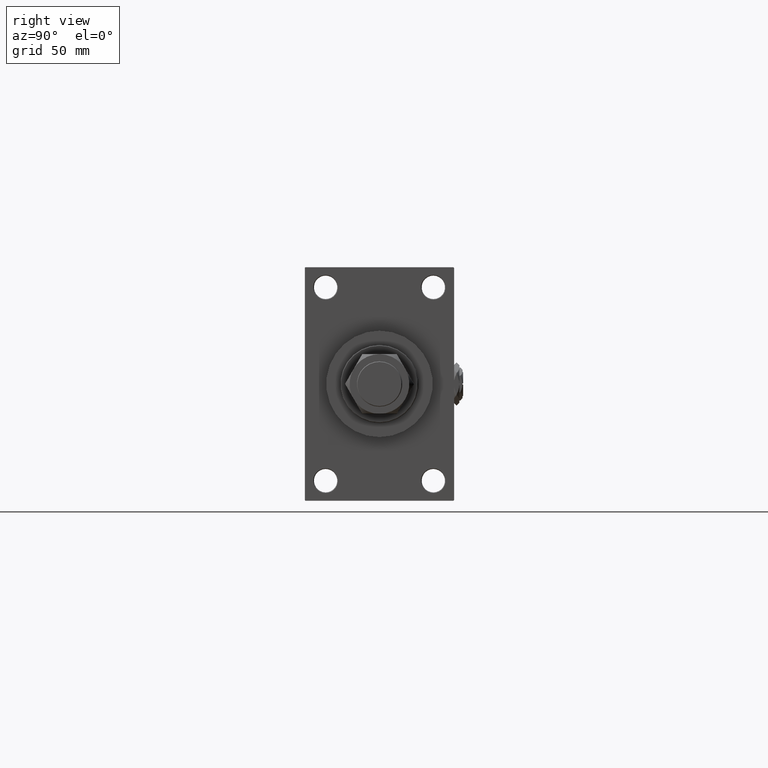
[diagram: clean part render]
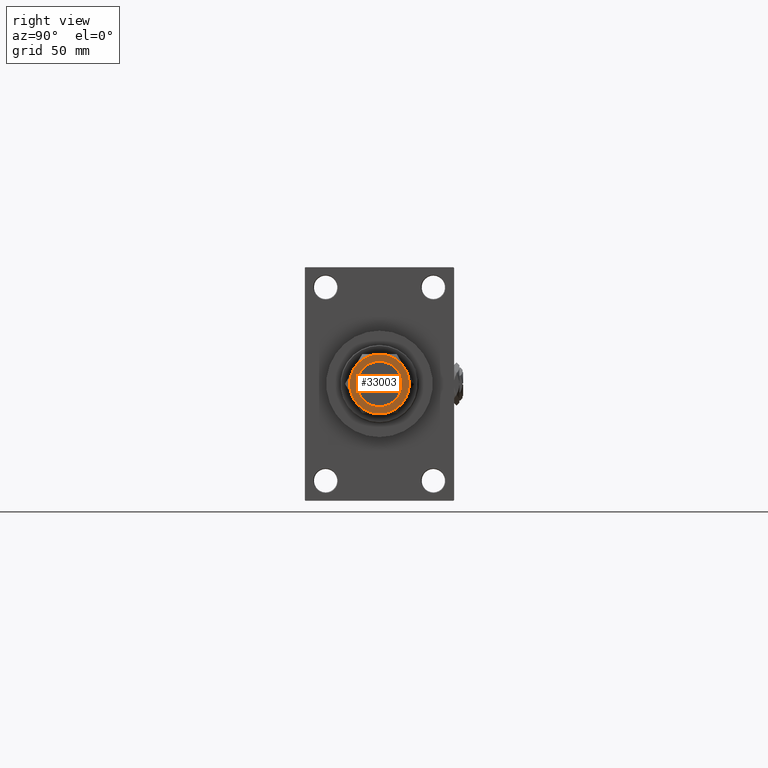
[diagram: same view with one face highlighted and labeled with its STEP entity id]
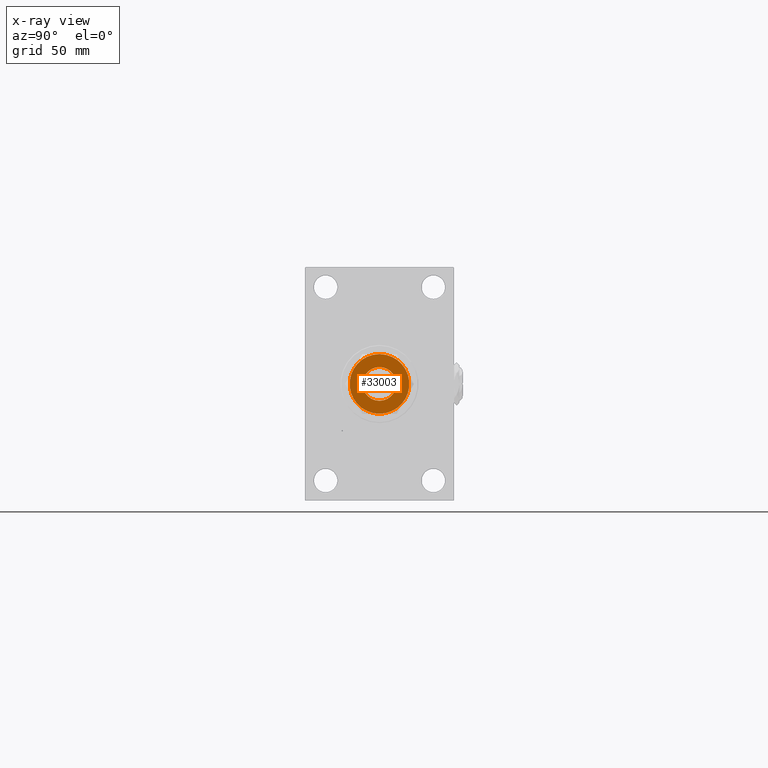
[diagram: x-ray of the same camera — body ghosted, the highlighted face saturated]
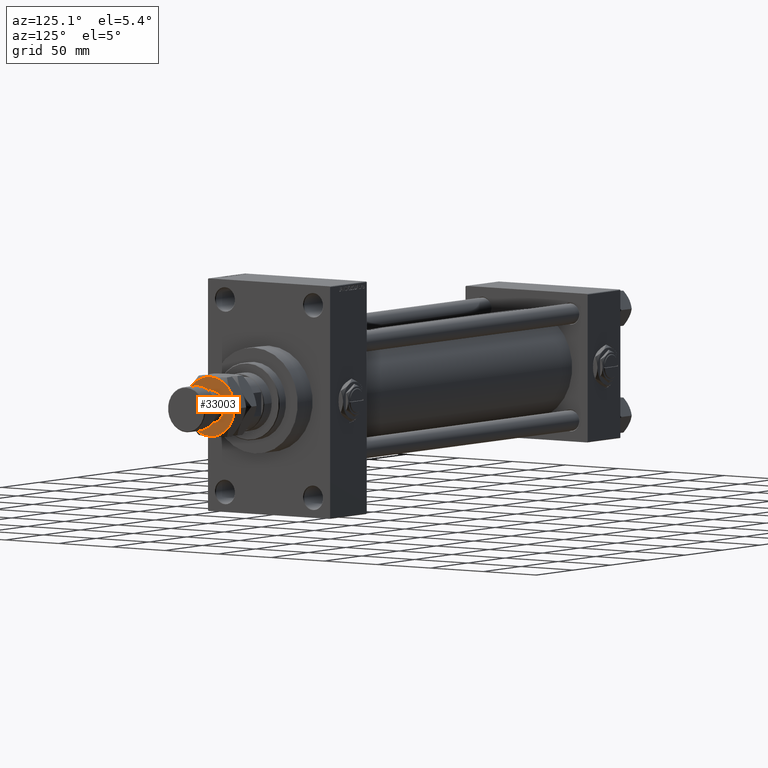
[diagram: same view with one face highlighted and labeled with its STEP entity id]
A machine part, right view. The second image highlights one B-rep face of the part: STEP entity #33003.
The next image is the same camera in x-ray: the body ghosted, the highlighted face saturated — about 0% of this face is hidden behind the body in this view.
A second angle (auxiliary view) of the same face is appended — the face is thin or edge-on in the first view.
In plain terms, the highlighted planar face has unit normal (1, 0, 0).
Its self-contained STEP definition (entity closure, byte-faithful):
#1750 = EDGE_LOOP ( 'NONE', ( #9177, #27022 ) ) ;
#1767 = DIRECTION ( 'NONE',  ( 1.000000000000000000, 0.000000000000000000, 0.000000000000000000 ) ) ;
#2305 = ORIENTED_EDGE ( 'NONE', *, *, #30391, .T. ) ;
#2364 = ORIENTED_EDGE ( 'NONE', *, *, #30924, .T. ) ;
#2532 = CIRCLE ( 'NONE', #7503, 22.99999999999999645 ) ;
#2753 = CARTESIAN_POINT ( 'NONE',  ( 13.00000000000000000, 0.000000000000000000, 27.99999999999999645 ) ) ;
#3646 = DIRECTION ( 'NONE',  ( 0.000000000000000000, 0.000000000000000000, 1.000000000000000000 ) ) ;
#4444 = DIRECTION ( 'NONE',  ( 1.000000000000000000, 0.000000000000000000, -0.000000000000000000 ) ) ;
#4663 = CARTESIAN_POINT ( 'NONE',  ( 11.49999999999999822, 19.91858428704208706, 28.00000000000000000 ) ) ;
#4705 = CARTESIAN_POINT ( 'NONE',  ( 0.000000000000000000, 0.000000000000000000, 28.00000000000000000 ) ) ;
#6516 = CARTESIAN_POINT ( 'NONE',  ( 0.000000000000000000, 0.000000000000000000, 28.00000000000000000 ) ) ;
#6794 = DIRECTION ( 'NONE',  ( 0.000000000000000000, 0.000000000000000000, 1.000000000000000000 ) ) ;
#7503 = AXIS2_PLACEMENT_3D ( 'NONE', #37461, #29653, #18168 ) ;
#8194 = EDGE_CURVE ( 'NONE', #50938, #26762, #2532, .T. ) ;
#8657 = CARTESIAN_POINT ( 'NONE',  ( -13.00000000000000000, 1.592040838891559095E-15, 27.99999999999999645 ) ) ;
#9177 = ORIENTED_EDGE ( 'NONE', *, *, #20854, .T. ) ;
#9436 = DIRECTION ( 'NONE',  ( 1.000000000000000000, 0.000000000000000000, 0.000000000000000000 ) ) ;
#9580 = CARTESIAN_POINT ( 'NONE',  ( -11.50000000000000533, -19.91858428704208706, 28.00000000000000000 ) ) ;
#11886 = CARTESIAN_POINT ( 'NONE',  ( 0.000000000000000000, 0.000000000000000000, 28.00000000000000000 ) ) ;
#12271 = CARTESIAN_POINT ( 'NONE',  ( 0.000000000000000000, 0.000000000000000000, 28.00000000000000000 ) ) ;
#12901 = AXIS2_PLACEMENT_3D ( 'NONE', #11886, #6794, #28311 ) ;
#13842 = DIRECTION ( 'NONE',  ( 0.000000000000000000, 0.000000000000000000, 1.000000000000000000 ) ) ;
#15700 = CIRCLE ( 'NONE', #44843, 22.99999999999999645 ) ;
#16155 = FACE_BOUND ( 'NONE', #1750, .T. ) ;
#16371 = CARTESIAN_POINT ( 'NONE',  ( -11.49999999999999822, 19.91858428704208706, 28.00000000000000000 ) ) ;
#16699 = DIRECTION ( 'NONE',  ( 1.000000000000000000, 0.000000000000000000, 0.000000000000000000 ) ) ;
#18168 = DIRECTION ( 'NONE',  ( 1.000000000000000000, 0.000000000000000000, 0.000000000000000000 ) ) ;
#18513 = CIRCLE ( 'NONE', #47634, 13.00000000000000000 ) ;
#20618 = DIRECTION ( 'NONE',  ( 1.000000000000000000, 0.000000000000000000, 0.000000000000000000 ) ) ;
#20854 = EDGE_CURVE ( 'NONE', #29452, #41229, #42882, .T. ) ;
#22226 = VERTEX_POINT ( 'NONE', #38957 ) ;
#22355 = CARTESIAN_POINT ( 'NONE',  ( 11.50000000000000533, -19.91858428704207995, 28.00000000000000000 ) ) ;
#24240 = DIRECTION ( 'NONE',  ( 0.000000000000000000, 0.000000000000000000, 1.000000000000000000 ) ) ;
#24253 = EDGE_CURVE ( 'NONE', #41229, #29452, #18513, .T. ) ;
#26440 = VERTEX_POINT ( 'NONE', #4663 ) ;
#26571 = DIRECTION ( 'NONE',  ( -0.000000000000000000, -0.000000000000000000, -1.000000000000000000 ) ) ;
#26762 = VERTEX_POINT ( 'NONE', #22355 ) ;
#27022 = ORIENTED_EDGE ( 'NONE', *, *, #24253, .T. ) ;
#27826 = VERTEX_POINT ( 'NONE', #31043 ) ;
#28148 = PLANE ( 'NONE',  #37016 ) ;
#28194 = DIRECTION ( 'NONE',  ( 0.000000000000000000, 0.000000000000000000, 1.000000000000000000 ) ) ;
#28311 = DIRECTION ( 'NONE',  ( 1.000000000000000000, 0.000000000000000000, 0.000000000000000000 ) ) ;
#29452 = VERTEX_POINT ( 'NONE', #2753 ) ;
#29653 = DIRECTION ( 'NONE',  ( 0.000000000000000000, 0.000000000000000000, 1.000000000000000000 ) ) ;
#29655 = EDGE_LOOP ( 'NONE', ( #39836, #35587, #2364, #2305, #43943, #38188 ) ) ;
#30391 = EDGE_CURVE ( 'NONE', #36805, #22226, #34577, .T. ) ;
#30924 = EDGE_CURVE ( 'NONE', #26440, #36805, #42093, .T. ) ;
#31043 = CARTESIAN_POINT ( 'NONE',  ( 22.99999999999999645, 0.000000000000000000, 28.00000000000000000 ) ) ;
#31684 = EDGE_CURVE ( 'NONE', #22226, #50938, #40438, .T. ) ;
#32070 = FACE_OUTER_BOUND ( 'NONE', #29655, .T. ) ;
#33003 = ADVANCED_FACE ( 'NONE', ( #16155, #32070 ), #28148, .T. ) ;
#33235 = CIRCLE ( 'NONE', #38224, 22.99999999999999645 ) ;
#34577 = CIRCLE ( 'NONE', #12901, 22.99999999999999645 ) ;
#35587 = ORIENTED_EDGE ( 'NONE', *, *, #49565, .T. ) ;
#36805 = VERTEX_POINT ( 'NONE', #16371 ) ;
#37016 = AXIS2_PLACEMENT_3D ( 'NONE', #44037, #24240, #4444 ) ;
#37021 = DIRECTION ( 'NONE',  ( 0.000000000000000000, 0.000000000000000000, 1.000000000000000000 ) ) ;
#37461 = CARTESIAN_POINT ( 'NONE',  ( 0.000000000000000000, 0.000000000000000000, 28.00000000000000000 ) ) ;
#38188 = ORIENTED_EDGE ( 'NONE', *, *, #8194, .T. ) ;
#38224 = AXIS2_PLACEMENT_3D ( 'NONE', #38349, #13842, #9436 ) ;
#38349 = CARTESIAN_POINT ( 'NONE',  ( 0.000000000000000000, 0.000000000000000000, 28.00000000000000000 ) ) ;
#38712 = AXIS2_PLACEMENT_3D ( 'NONE', #4705, #45805, #1767 ) ;
#38957 = CARTESIAN_POINT ( 'NONE',  ( -22.99999999999999645, 0.000000000000000000, 28.00000000000000000 ) ) ;
#39836 = ORIENTED_EDGE ( 'NONE', *, *, #48494, .T. ) ;
#40438 = CIRCLE ( 'NONE', #42015, 22.99999999999999645 ) ;
#41229 = VERTEX_POINT ( 'NONE', #8657 ) ;
#42015 = AXIS2_PLACEMENT_3D ( 'NONE', #44340, #28194, #20618 ) ;
#42093 = CIRCLE ( 'NONE', #47078, 22.99999999999999645 ) ;
#42882 = CIRCLE ( 'NONE', #38712, 13.00000000000000000 ) ;
#43497 = DIRECTION ( 'NONE',  ( 1.000000000000000000, 0.000000000000000000, 0.000000000000000000 ) ) ;
#43943 = ORIENTED_EDGE ( 'NONE', *, *, #31684, .T. ) ;
#44037 = CARTESIAN_POINT ( 'NONE',  ( 0.000000000000000000, 0.000000000000000000, 28.00000000000000000 ) ) ;
#44340 = CARTESIAN_POINT ( 'NONE',  ( 0.000000000000000000, 0.000000000000000000, 28.00000000000000000 ) ) ;
#44843 = AXIS2_PLACEMENT_3D ( 'NONE', #51073, #3646, #43497 ) ;
#45591 = DIRECTION ( 'NONE',  ( 1.000000000000000000, 0.000000000000000000, 0.000000000000000000 ) ) ;
#45805 = DIRECTION ( 'NONE',  ( -0.000000000000000000, -0.000000000000000000, -1.000000000000000000 ) ) ;
#47078 = AXIS2_PLACEMENT_3D ( 'NONE', #12271, #37021, #16699 ) ;
#47634 = AXIS2_PLACEMENT_3D ( 'NONE', #6516, #26571, #45591 ) ;
#48494 = EDGE_CURVE ( 'NONE', #26762, #27826, #15700, .T. ) ;
#49565 = EDGE_CURVE ( 'NONE', #27826, #26440, #33235, .T. ) ;
#50938 = VERTEX_POINT ( 'NONE', #9580 ) ;
#51073 = CARTESIAN_POINT ( 'NONE',  ( 0.000000000000000000, 0.000000000000000000, 28.00000000000000000 ) ) ;